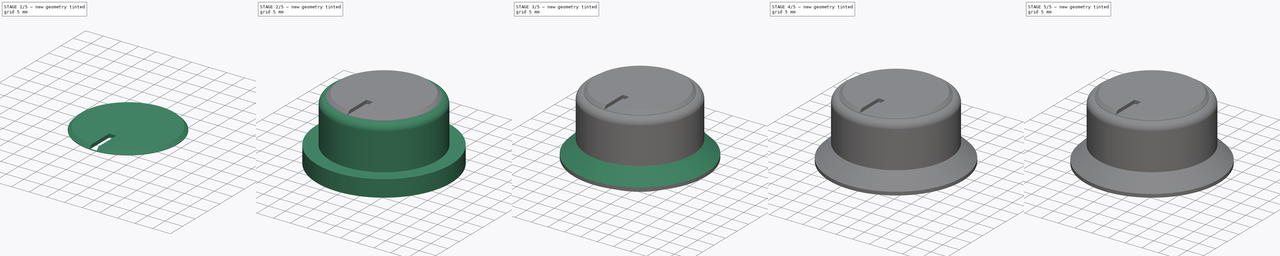
[diagram: build sequence overview — one tinted view per stage of 5, left to right]
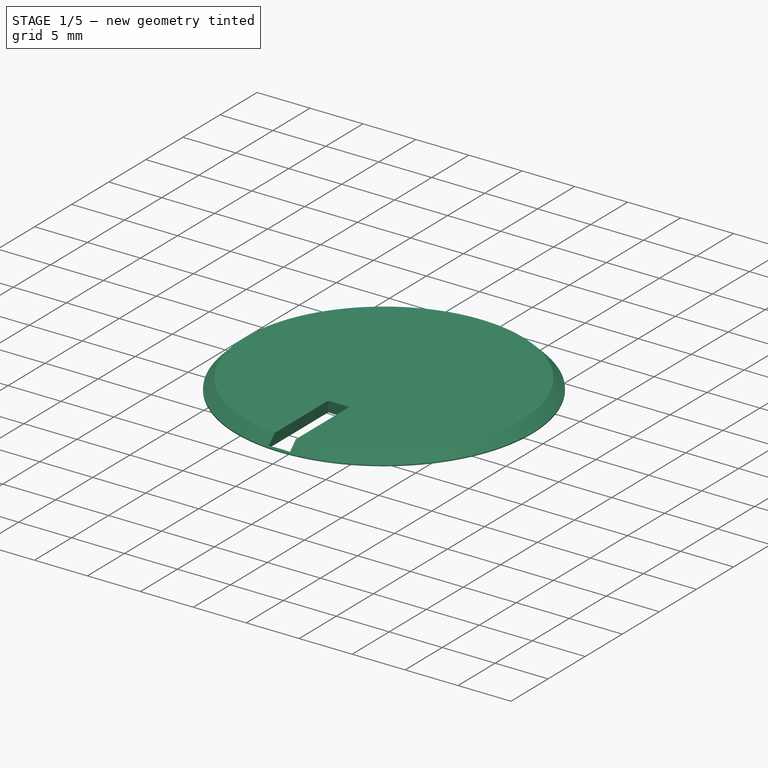
[diagram: stage 1 of 5 — iso view after this stage's code; geometry added in this stage tinted green]
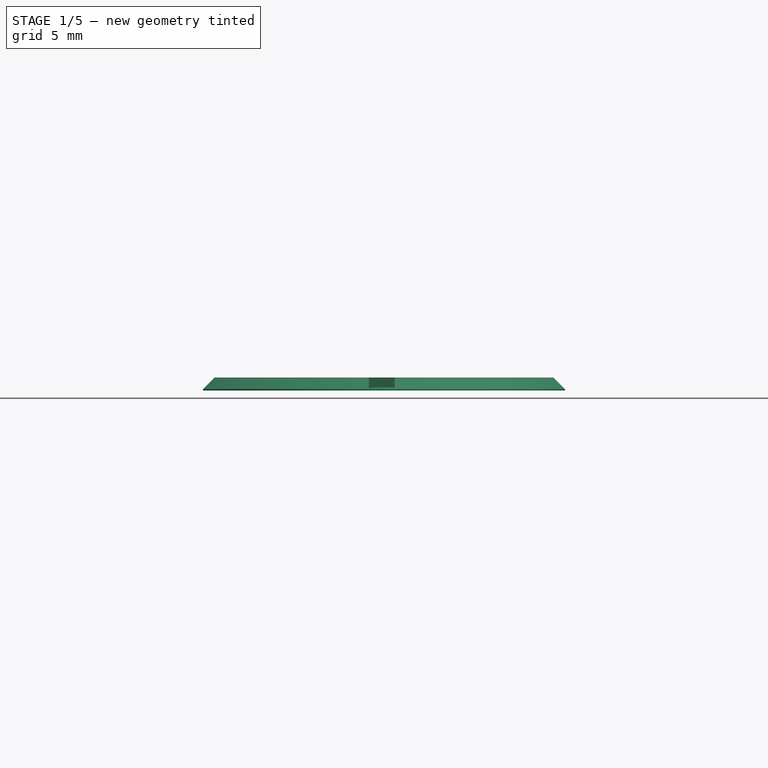
[diagram: stage 1 of 5 — front view after this stage's code; geometry added in this stage tinted green]
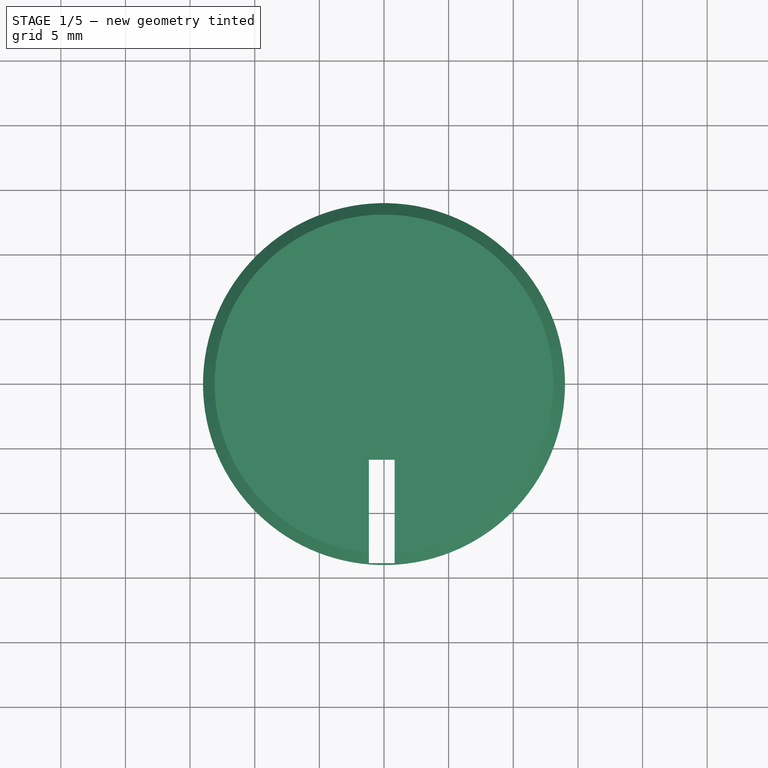
[diagram: stage 1 of 5 — top view after this stage's code; geometry added in this stage tinted green]
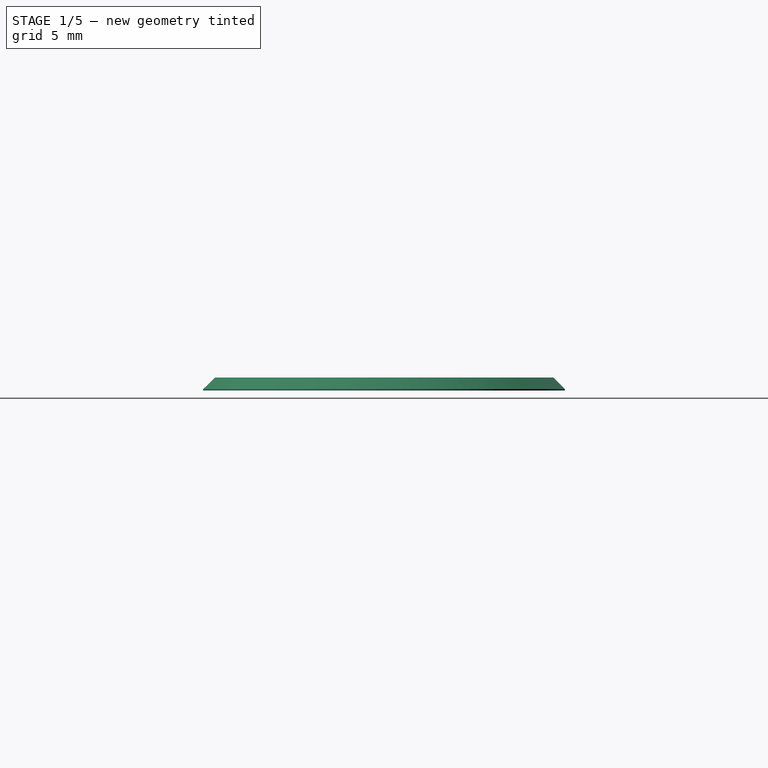
[diagram: stage 1 of 5 — right view after this stage's code; geometry added in this stage tinted green]
FCSTD DOCUMENT  (FreeCAD 0.15R4671 (Git))
Label: cutter knob
License: All rights reserved
LicenseURL: http://en.wikipedia.org/wiki/All_rights_reserved
objects: Part::Cylinder×6, Part::MultiFuse×3, PartDesign::Chamfer×2, Part::Cut×2, PartDesign::Fillet×1, Sketcher::SketchObject×1, PartDesign::Pocket×1
note: 17 computed .brp shape members not serialized (recipe doc carries the construction recipe); baked Part::Feature solids carry a one-line shape summary decoded from their .brp

FEATURE [Part::Cylinder] Cylinder002
  Angle = 360
  Height = 1
  Placement = pos=(0,0,18) rot=(0,0,1;0rad)
  Radius = 14
FEATURE [PartDesign::Chamfer] Chamfer001
  Base = -> Cylinder002 [Edge1]
  Placement = pos=(0,0,18) rot=(0,0,1;0rad)
  Size = 0.9
FEATURE [Sketcher::SketchObject] Sketch
  Placement = pos=(0,0,19) rot=(0,0,1;0rad)
  Support = -> Chamfer001 [Face4]
  sketch-geometry (4):
    g0: LineSegment StartX=-1 StartY=-5.00958 StartZ=0 EndX=1 EndY=-5.00958 EndZ=0
    g1: LineSegment StartX=1 StartY=-5.00958 StartZ=0 EndX=1 EndY=-13.0096 EndZ=0
    g2: LineSegment StartX=1 StartY=-13.0096 StartZ=0 EndX=-1 EndY=-13.0096 EndZ=0
    g3: LineSegment StartX=-1 StartY=-13.0096 StartZ=0 EndX=-1 EndY=-5.00958 EndZ=0
  constraints (14):
    c: Coincident(g0,g1)
    c: Coincident(g1,g2)
    c: Coincident(g2,g3)
    c: Coincident(g3,g0)
    c: Horizontal(g0)
    c: Horizontal(g2)
    c: Vertical(g1)
    c: Vertical(g3)
    c: Equal(g0,g2)
    c: DistanceX(g0) = 2
    c: Equal(g3,g1)
    c: DistanceY(g1) = -8
    c: PointOnObject(g1,g1)
    c: Symmetric(g0,g0,g-2)
FEATURE [PartDesign::Pocket] Pocket
  Length = 1
  Placement = pos=(0,0,18) rot=(0,0,1;0rad)
  Sketch = -> Sketch
  Type = 0
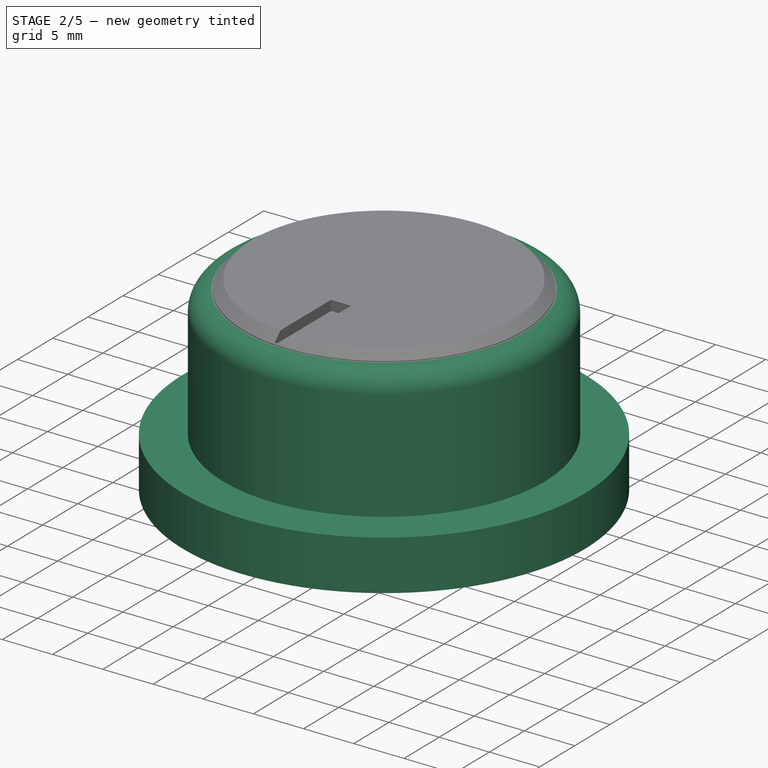
[diagram: stage 2 of 5 — iso view after this stage's code; geometry added in this stage tinted green]
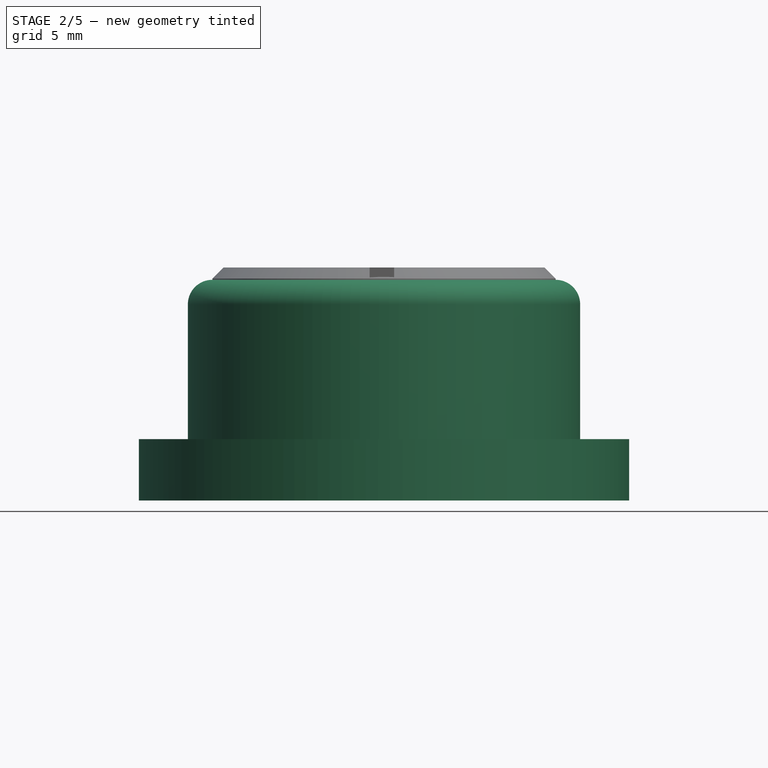
[diagram: stage 2 of 5 — front view after this stage's code; geometry added in this stage tinted green]
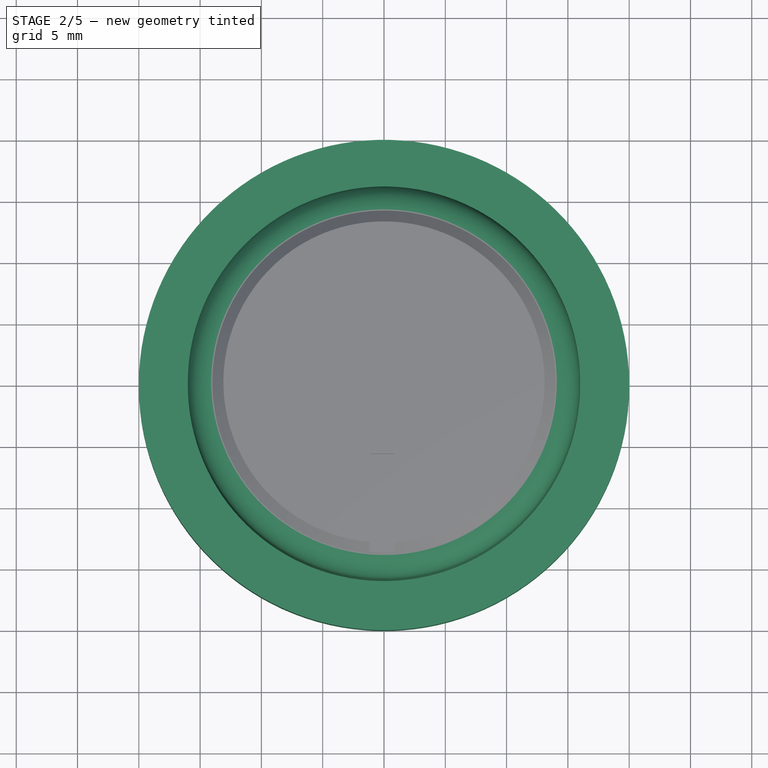
[diagram: stage 2 of 5 — top view after this stage's code; geometry added in this stage tinted green]
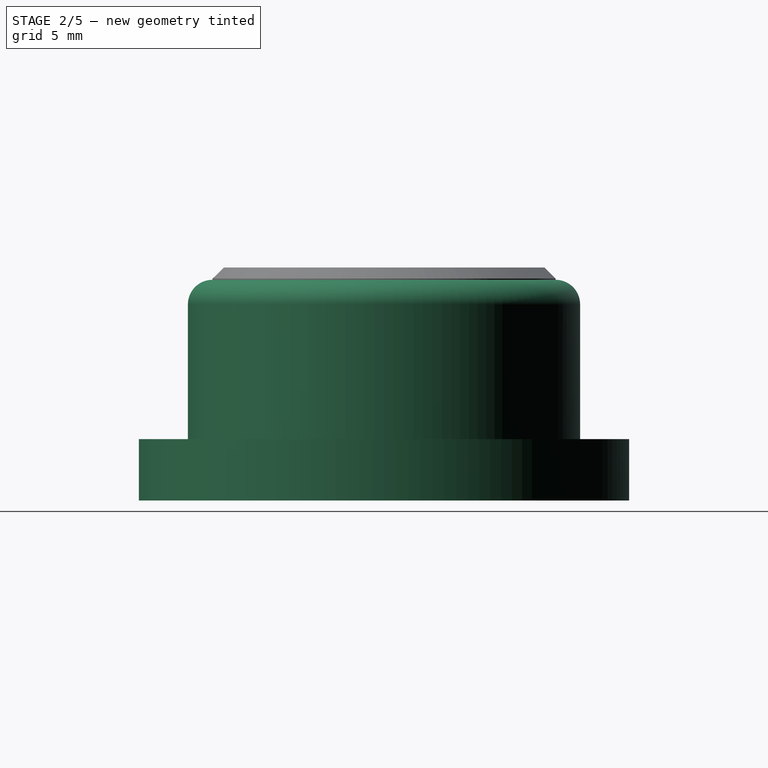
[diagram: stage 2 of 5 — right view after this stage's code; geometry added in this stage tinted green]
FEATURE [Part::Cylinder] Cylinder
  Angle = 360
  Height = 5
  Radius = 20
FEATURE [Part::Cylinder] Cylinder001
  Angle = 360
  Height = 15
  Placement = pos=(0,0,3) rot=(0,0,1;0rad)
  Radius = 16
FEATURE [PartDesign::Fillet] Fillet
  Base = -> Cylinder001 [Edge1]
  Placement = pos=(0,0,3) rot=(0,0,1;0rad)
  Radius = 2
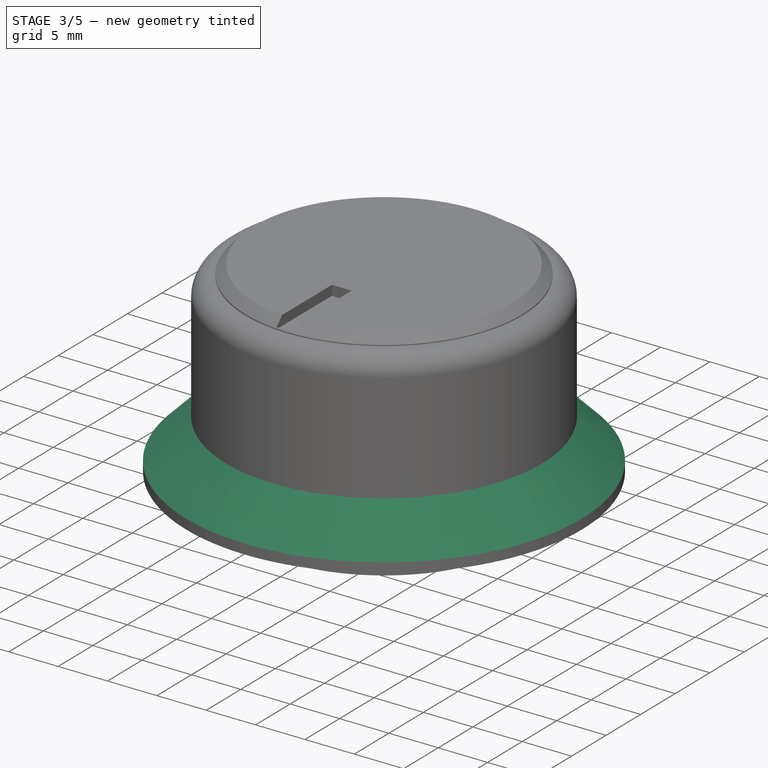
[diagram: stage 3 of 5 — iso view after this stage's code; geometry added in this stage tinted green]
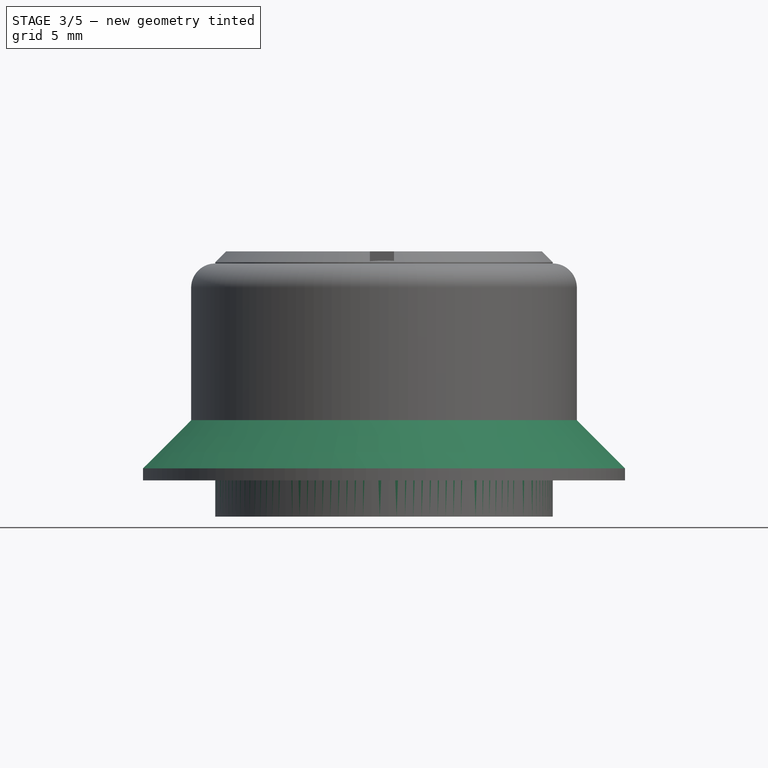
[diagram: stage 3 of 5 — front view after this stage's code; geometry added in this stage tinted green]
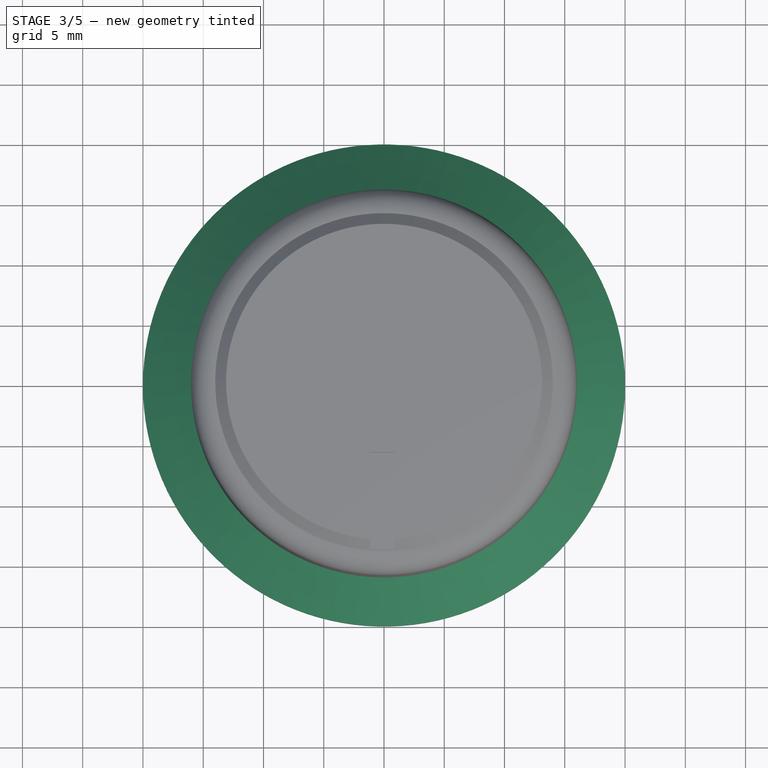
[diagram: stage 3 of 5 — top view after this stage's code; geometry added in this stage tinted green]
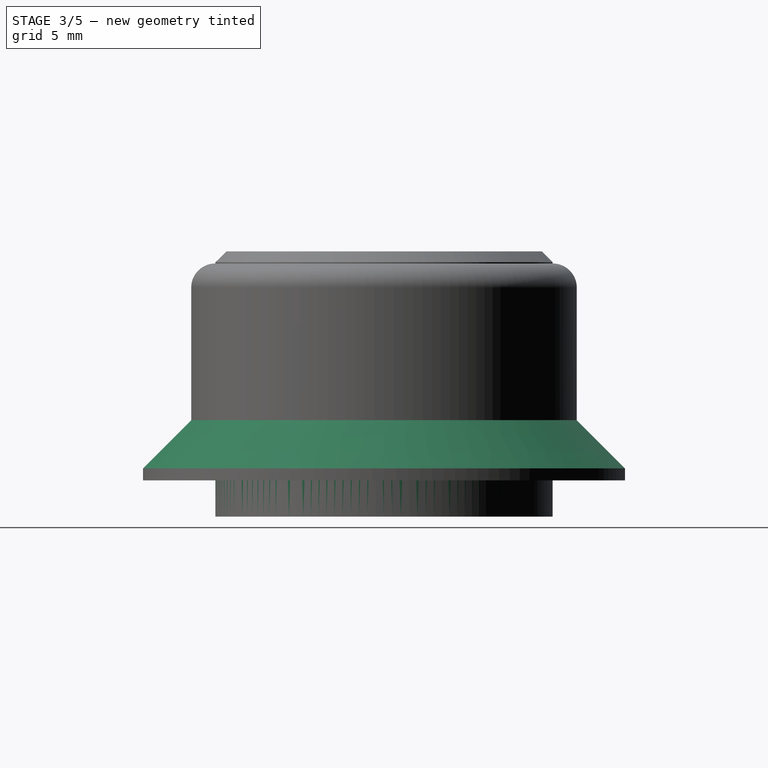
[diagram: stage 3 of 5 — right view after this stage's code; geometry added in this stage tinted green]
FEATURE [PartDesign::Chamfer] Chamfer
  Base = -> Cylinder [Edge1]
  Size = 4
FEATURE [Part::Cylinder] Cylinder003
  Angle = 360
  Height = 18
  Placement = pos=(0,0,-3) rot=(0,0,1;0rad)
  Radius = 14
FEATURE [Part::MultiFuse] Fusion
  Shapes = -> [Chamfer,Fillet]
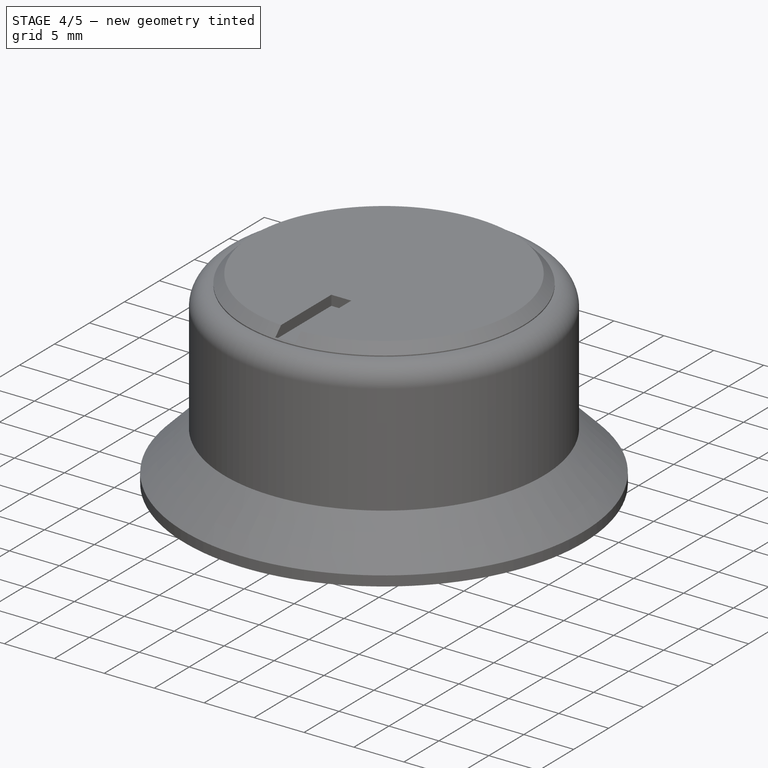
[diagram: stage 4 of 5 — iso view after this stage's code; geometry added in this stage tinted green]
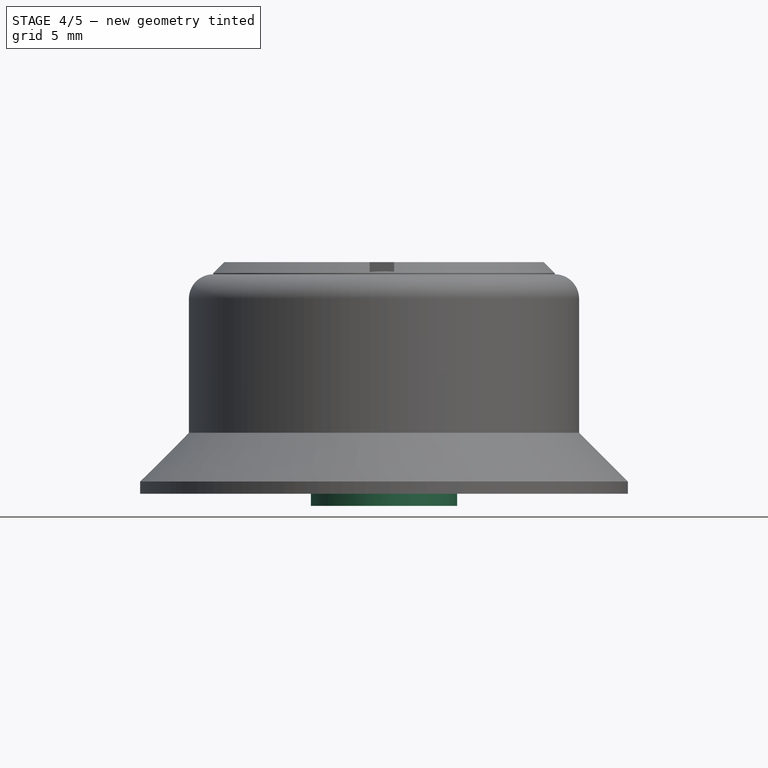
[diagram: stage 4 of 5 — front view after this stage's code; geometry added in this stage tinted green]
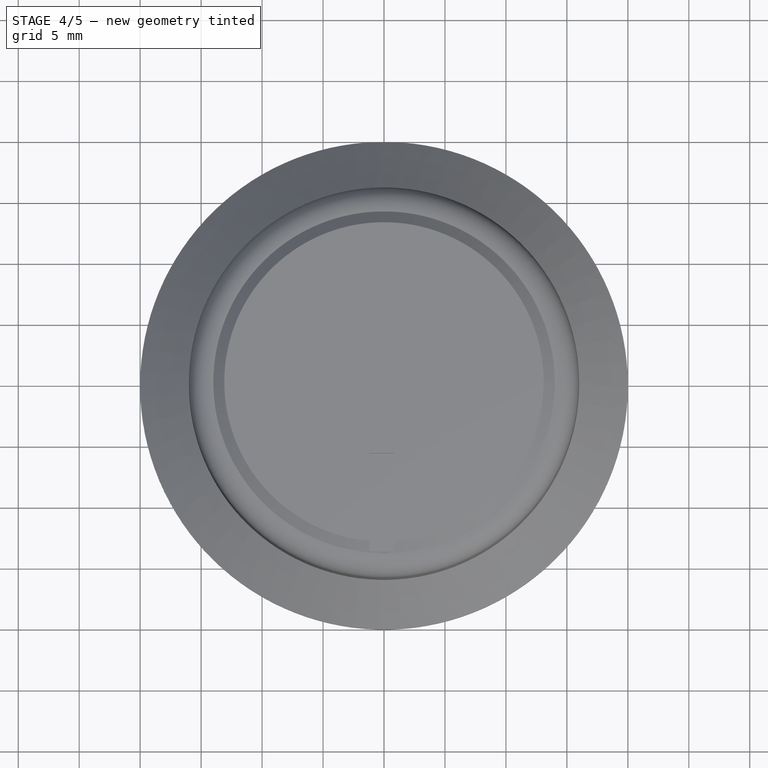
[diagram: stage 4 of 5 — top view after this stage's code; geometry added in this stage tinted green]
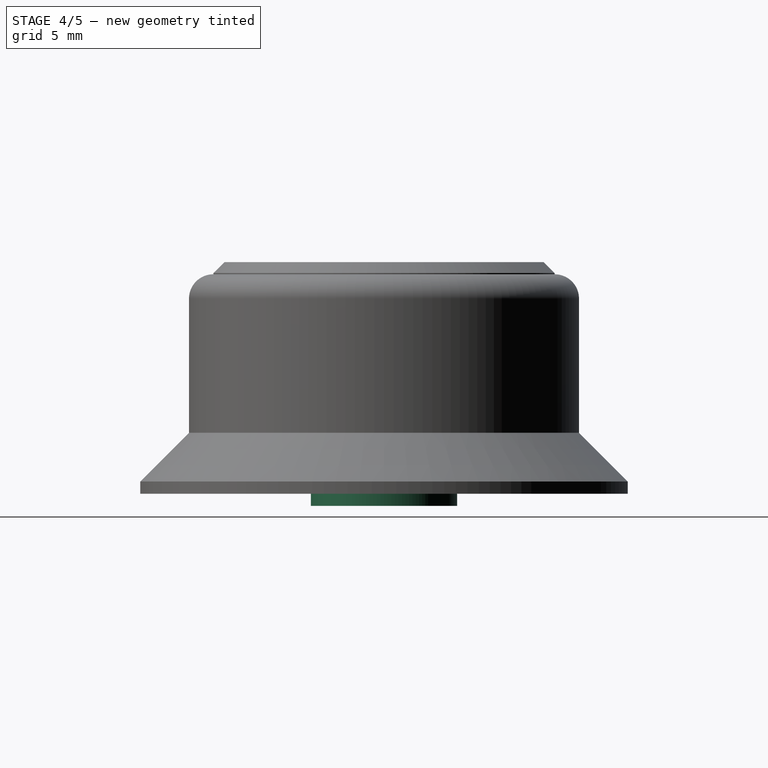
[diagram: stage 4 of 5 — right view after this stage's code; geometry added in this stage tinted green]
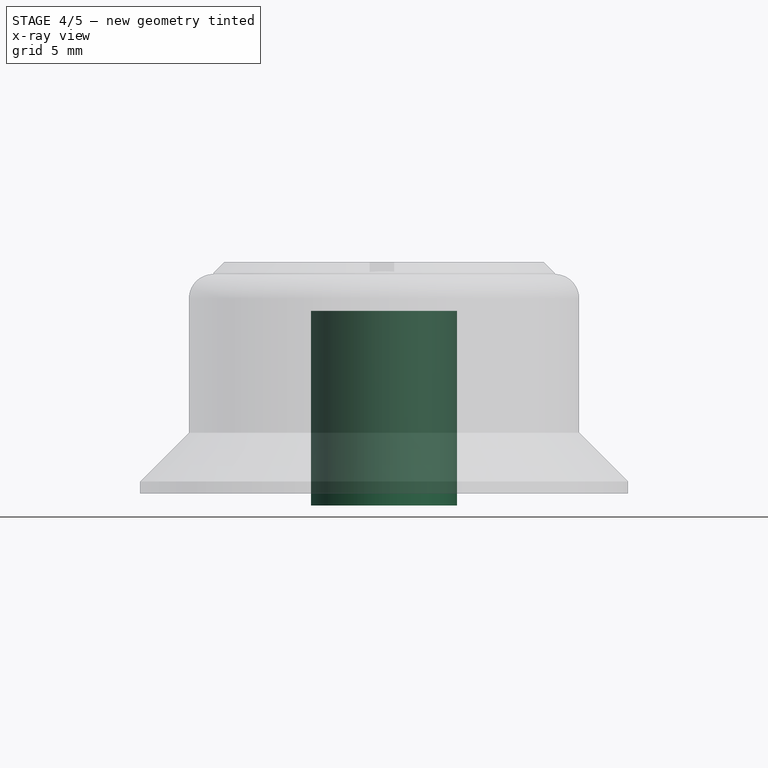
[diagram: stage 4 of 5 — x-ray composite at the front view; earlier geometry ghosted, this stage's added geometry solid]
FEATURE [Part::Cut] Cut
  Base = -> Fusion
  Tool = -> Cylinder003
FEATURE [Part::Cylinder] Cylinder005
  Angle = 360
  Height = 16
  Placement = pos=(0,0,-1) rot=(0,0,1;0rad)
  Radius = 6
FEATURE [Part::MultiFuse] Fusion001
  Shapes = -> [Cut,Pocket]
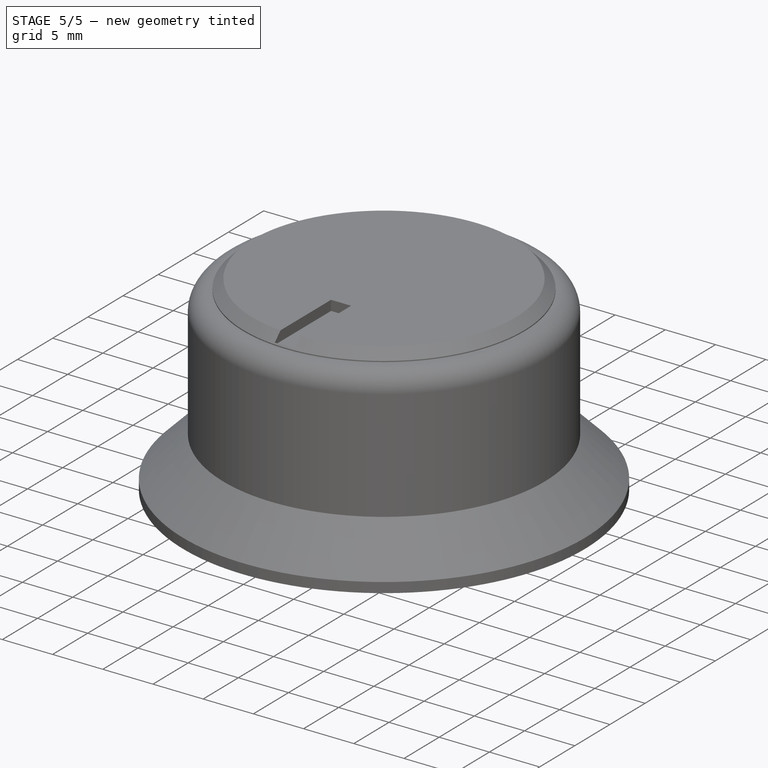
[diagram: stage 5 of 5 — iso view after this stage's code; geometry added in this stage tinted green]
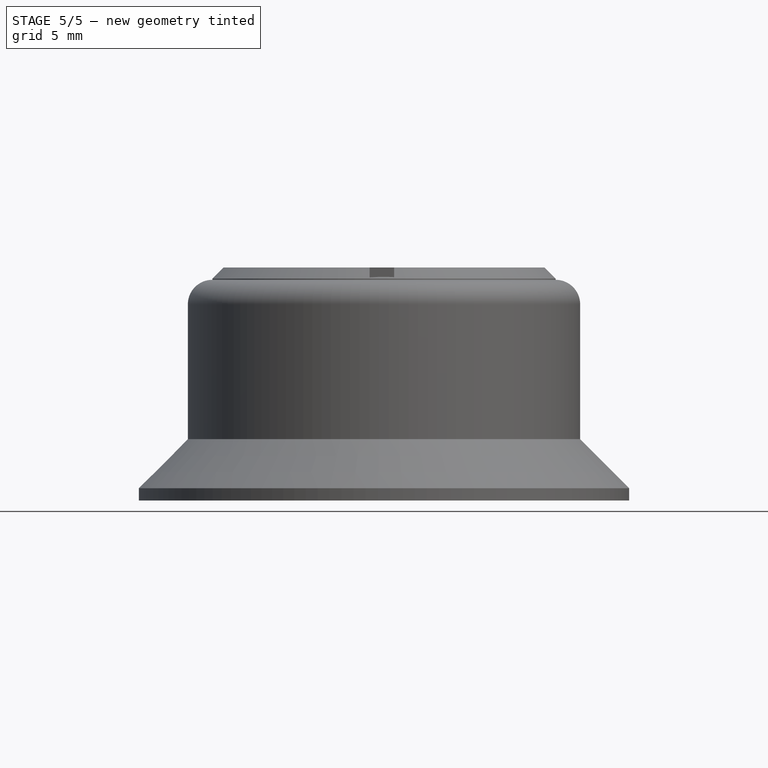
[diagram: stage 5 of 5 — front view after this stage's code; geometry added in this stage tinted green]
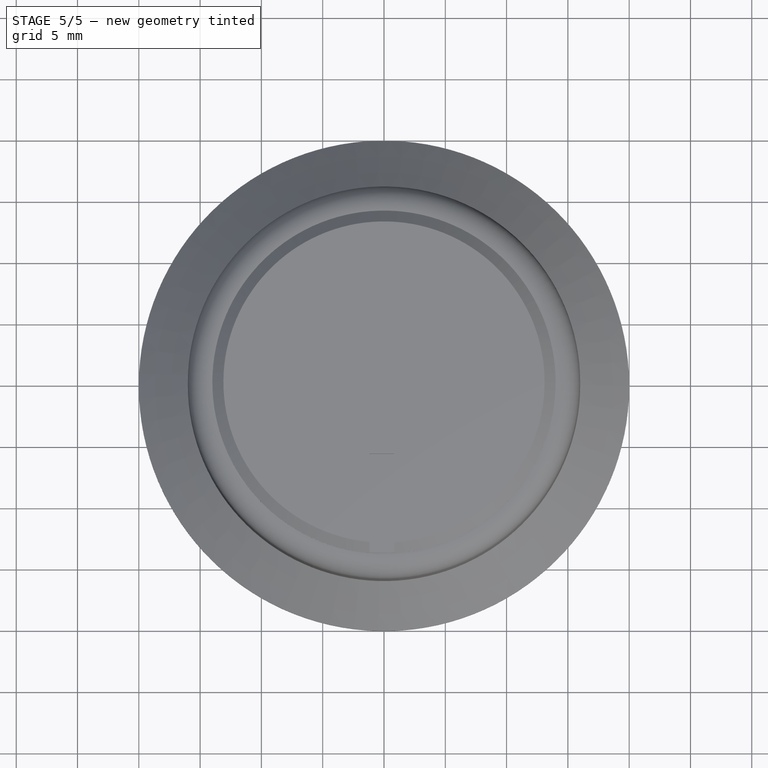
[diagram: stage 5 of 5 — top view after this stage's code; geometry added in this stage tinted green]
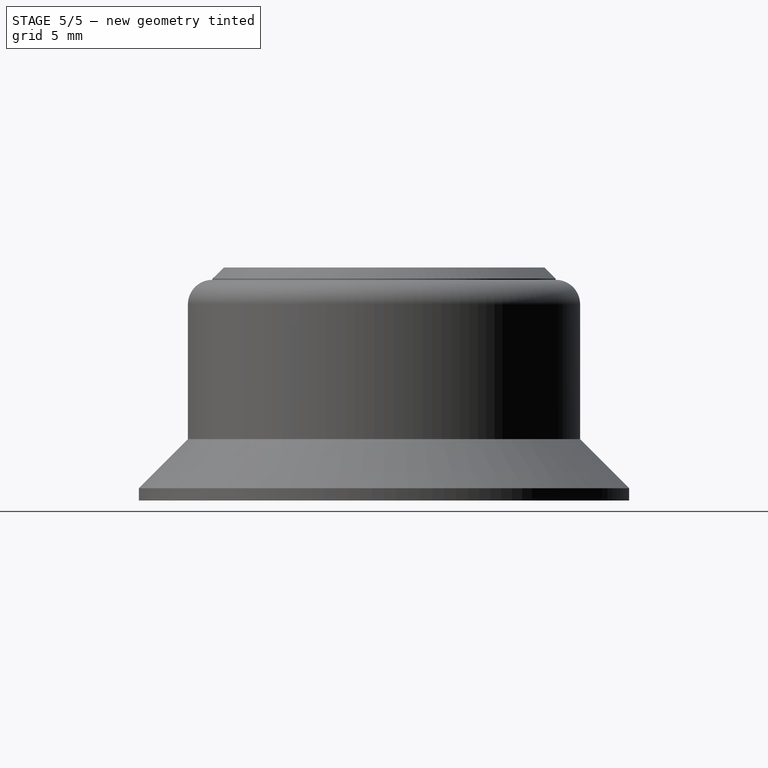
[diagram: stage 5 of 5 — right view after this stage's code; geometry added in this stage tinted green]
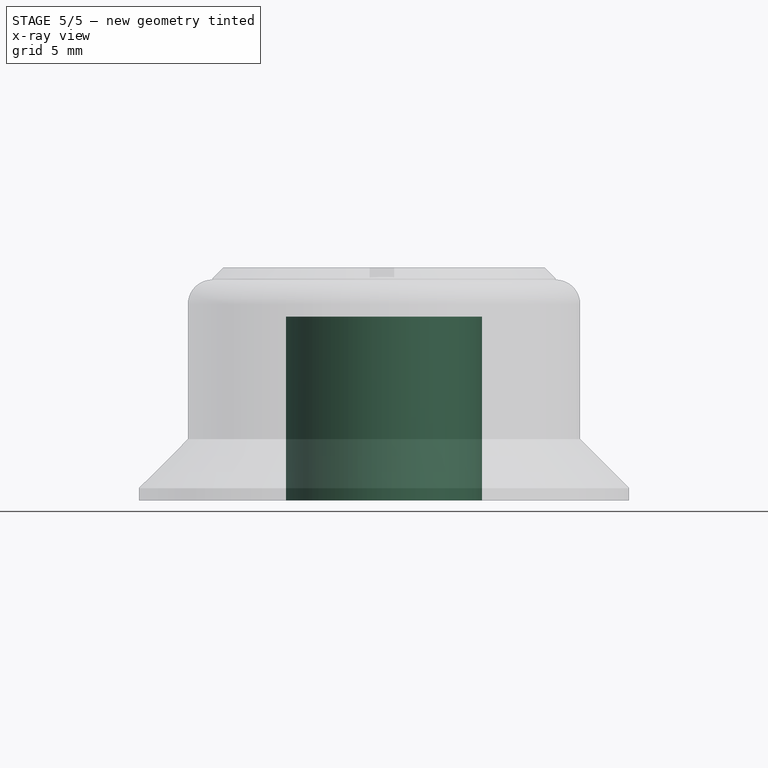
[diagram: stage 5 of 5 — x-ray composite at the front view; earlier geometry ghosted, this stage's added geometry solid]
FEATURE [Part::Cylinder] Cylinder004
  Angle = 360
  Height = 15
  Radius = 8
FEATURE [Part::Cut] Cut001
  Base = -> Cylinder004
  Tool = -> Cylinder005
FEATURE [Part::MultiFuse] Fusion002
  Shapes = -> [Fusion001,Cut001]
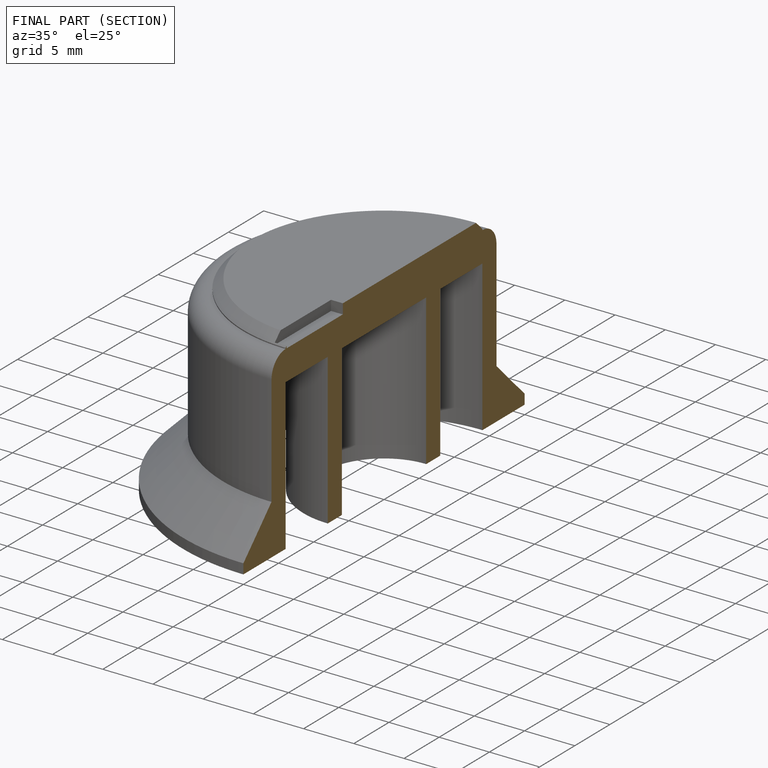
[diagram: finished part — half-section view (interior)]
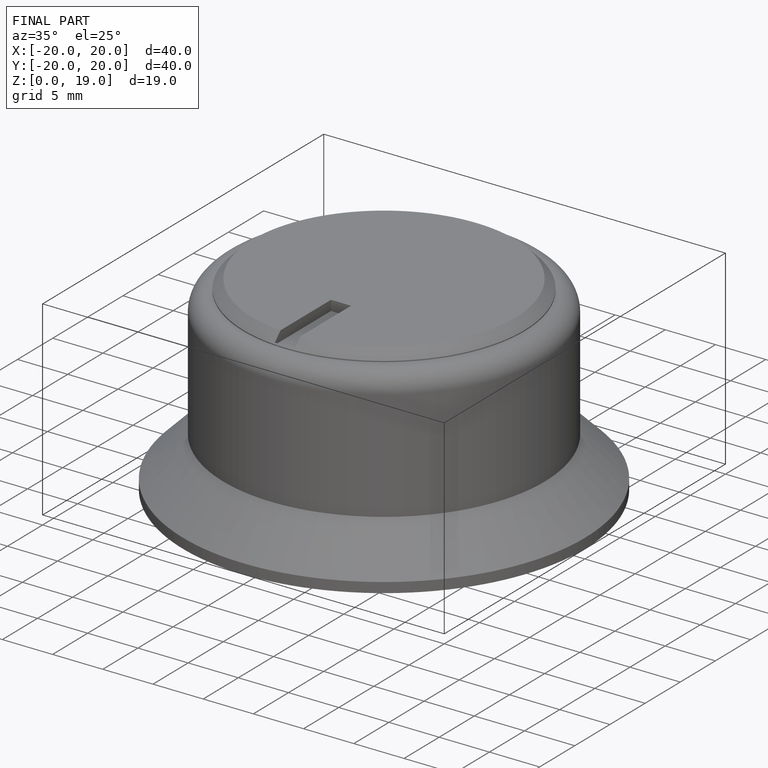
[diagram: finished part — iso view with bounding-box wireframe]
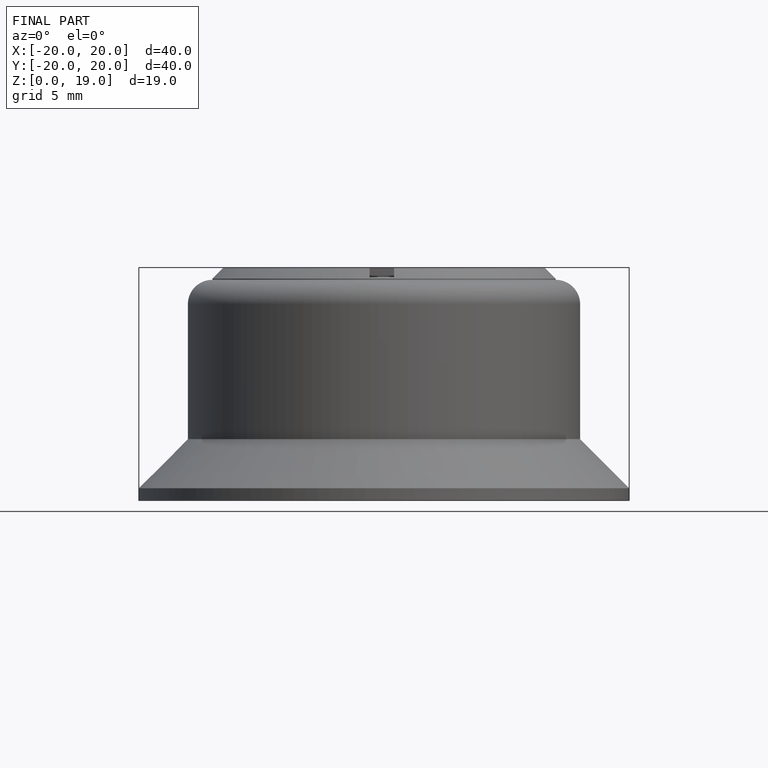
[diagram: finished part — front view with bounding-box wireframe]
